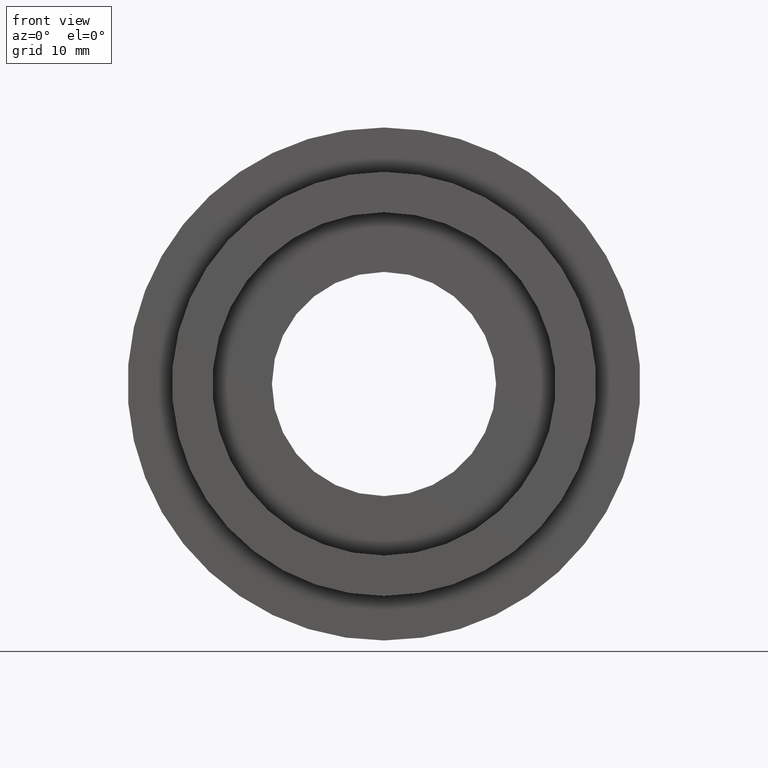
[diagram: clean part render]
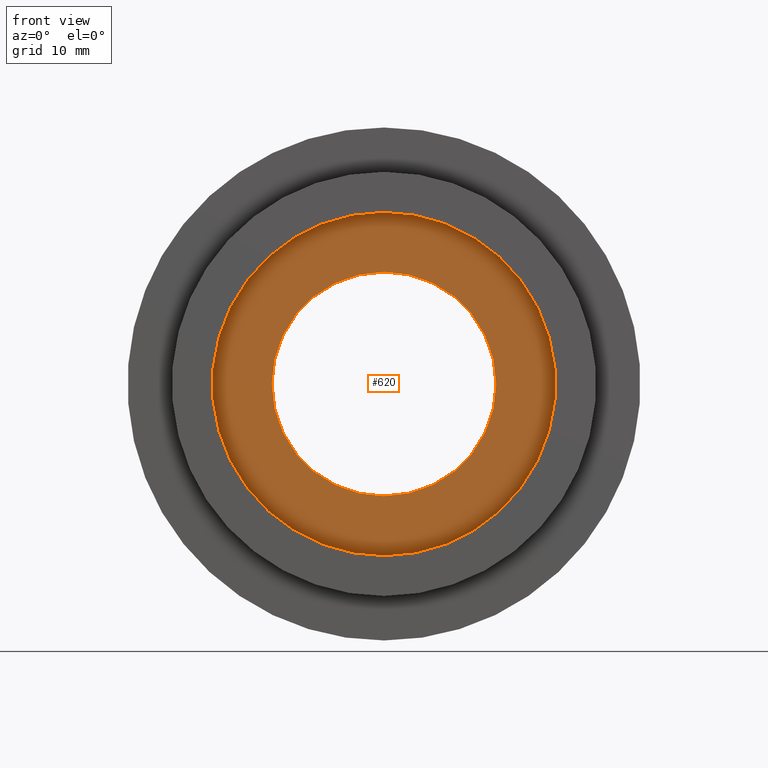
[diagram: same view with one face highlighted and labeled with its STEP entity id]
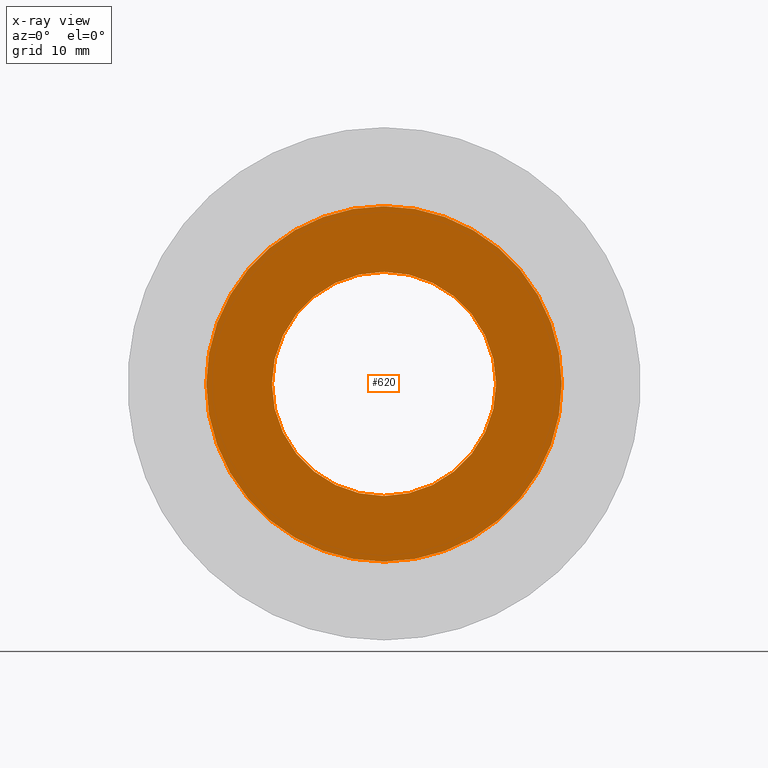
[diagram: x-ray of the same camera — body ghosted, the highlighted face saturated]
A machine part, front view. The second image highlights one B-rep face of the part: STEP entity #620.
The next image is the same camera in x-ray: the body ghosted, the highlighted face saturated — about 0% of this face is hidden behind the body in this view.
In plain terms, the highlighted planar face has unit normal (-0, 1, 0).
Its self-contained STEP definition (entity closure, byte-faithful):
#9 = AXIS2_PLACEMENT_3D ( 'NONE', #54, #58, #43 ) ;
#34 = DIRECTION ( 'NONE',  ( 0.0000000000000000000, 0.0000000000000000000, 1.000000000000000000 ) ) ;
#43 = DIRECTION ( 'NONE',  ( 0.0000000000000000000, 0.0000000000000000000, 1.000000000000000000 ) ) ;
#54 = CARTESIAN_POINT ( 'NONE',  ( 0.0000000000000000000, 4.999999999999999100, 0.0000000000000000000 ) ) ;
#58 = DIRECTION ( 'NONE',  ( -0.0000000000000000000, 1.000000000000000000, -0.0000000000000000000 ) ) ;
#71 = ORIENTED_EDGE ( 'NONE', *, *, #175, .T. ) ;
#76 = PLANE ( 'NONE',  #165 ) ;
#93 = DIRECTION ( 'NONE',  ( -0.0000000000000000000, 1.000000000000000000, -0.0000000000000000000 ) ) ;
#109 = AXIS2_PLACEMENT_3D ( 'NONE', #581, #93, #377 ) ;
#121 = VERTEX_POINT ( 'NONE', #517 ) ;
#127 = ORIENTED_EDGE ( 'NONE', *, *, #423, .F. ) ;
#133 = VERTEX_POINT ( 'NONE', #335 ) ;
#135 = ORIENTED_EDGE ( 'NONE', *, *, #309, .T. ) ;
#153 = CIRCLE ( 'NONE', #9, 11.10000000000000100 ) ;
#162 = DIRECTION ( 'NONE',  ( -0.0000000000000000000, 1.000000000000000000, 0.0000000000000000000 ) ) ;
#165 = AXIS2_PLACEMENT_3D ( 'NONE', #202, #162, #34 ) ;
#175 = EDGE_CURVE ( 'NONE', #121, #133, #389, .T. ) ;
#190 = EDGE_LOOP ( 'NONE', ( #135, #71 ) ) ;
#202 = CARTESIAN_POINT ( 'NONE',  ( 17.60000000000000100, 4.999999999999999100, 0.0000000000000000000 ) ) ;
#214 = FACE_OUTER_BOUND ( 'NONE', #367, .T. ) ;
#231 = FACE_BOUND ( 'NONE', #190, .T. ) ;
#247 = CARTESIAN_POINT ( 'NONE',  ( 0.0000000000000000000, 4.999999999999999100, 0.0000000000000000000 ) ) ;
#306 = DIRECTION ( 'NONE',  ( 0.0000000000000000000, 0.0000000000000000000, 1.000000000000000000 ) ) ;
#309 = EDGE_CURVE ( 'NONE', #133, #121, #153, .T. ) ;
#315 = DIRECTION ( 'NONE',  ( -0.0000000000000000000, 1.000000000000000000, -0.0000000000000000000 ) ) ;
#323 = CARTESIAN_POINT ( 'NONE',  ( 0.0000000000000000000, 4.999999999999999100, 17.60000000000000100 ) ) ;
#335 = CARTESIAN_POINT ( 'NONE',  ( 0.0000000000000000000, 4.999999999999999100, 11.10000000000000100 ) ) ;
#348 = CIRCLE ( 'NONE', #373, 17.60000000000000100 ) ;
#363 = AXIS2_PLACEMENT_3D ( 'NONE', #440, #400, #397 ) ;
#367 = EDGE_LOOP ( 'NONE', ( #127, #428 ) ) ;
#373 = AXIS2_PLACEMENT_3D ( 'NONE', #247, #315, #306 ) ;
#377 = DIRECTION ( 'NONE',  ( 0.0000000000000000000, 0.0000000000000000000, 1.000000000000000000 ) ) ;
#389 = CIRCLE ( 'NONE', #363, 11.10000000000000100 ) ;
#397 = DIRECTION ( 'NONE',  ( 0.0000000000000000000, 0.0000000000000000000, 1.000000000000000000 ) ) ;
#400 = DIRECTION ( 'NONE',  ( -0.0000000000000000000, 1.000000000000000000, -0.0000000000000000000 ) ) ;
#423 = EDGE_CURVE ( 'NONE', #447, #623, #348, .T. ) ;
#428 = ORIENTED_EDGE ( 'NONE', *, *, #466, .F. ) ;
#440 = CARTESIAN_POINT ( 'NONE',  ( 0.0000000000000000000, 4.999999999999999100, 0.0000000000000000000 ) ) ;
#447 = VERTEX_POINT ( 'NONE', #323 ) ;
#466 = EDGE_CURVE ( 'NONE', #623, #447, #537, .T. ) ;
#517 = CARTESIAN_POINT ( 'NONE',  ( 1.359357947053562400E-015, 4.999999999999999100, -11.10000000000000100 ) ) ;
#530 = CARTESIAN_POINT ( 'NONE',  ( 2.155378366499341600E-015, 4.999999999999999100, -17.60000000000000100 ) ) ;
#537 = CIRCLE ( 'NONE', #109, 17.60000000000000100 ) ;
#581 = CARTESIAN_POINT ( 'NONE',  ( 0.0000000000000000000, 4.999999999999999100, 0.0000000000000000000 ) ) ;
#620 = ADVANCED_FACE ( 'NONE', ( #214, #231 ), #76, .F. ) ;
#623 = VERTEX_POINT ( 'NONE', #530 ) ;